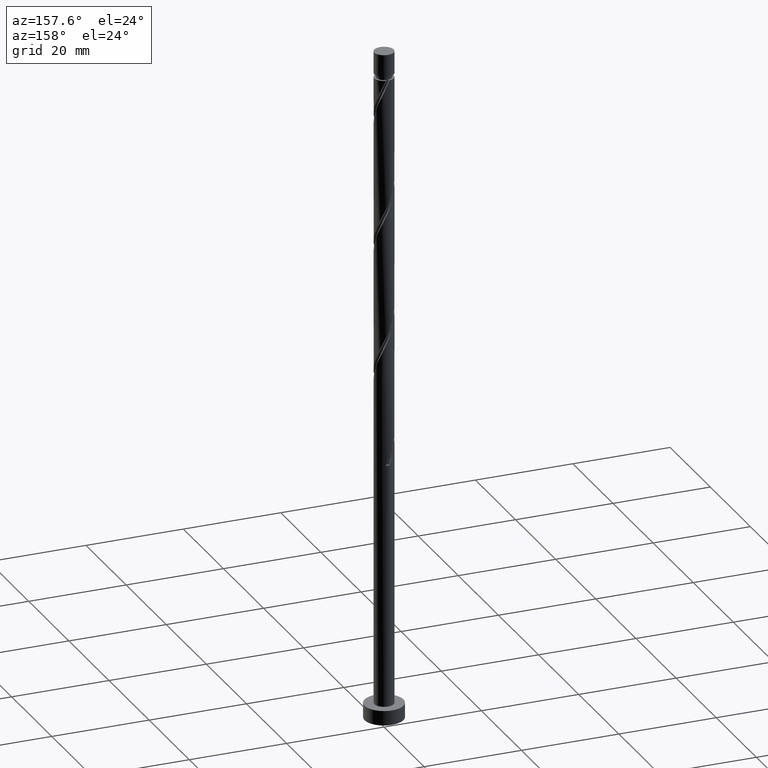
[diagram: clean part render]
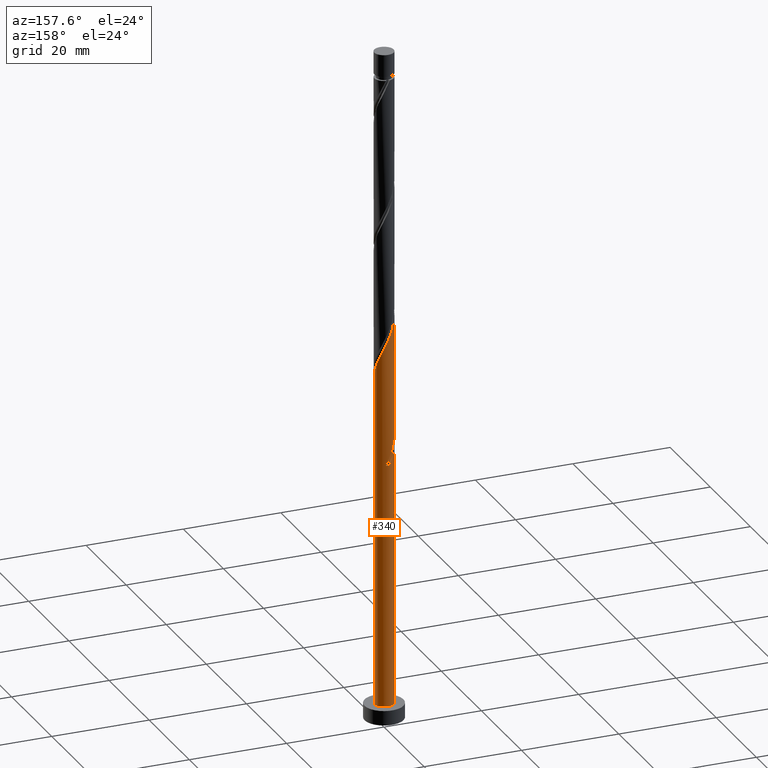
[diagram: same view with one face highlighted and labeled with its STEP entity id]
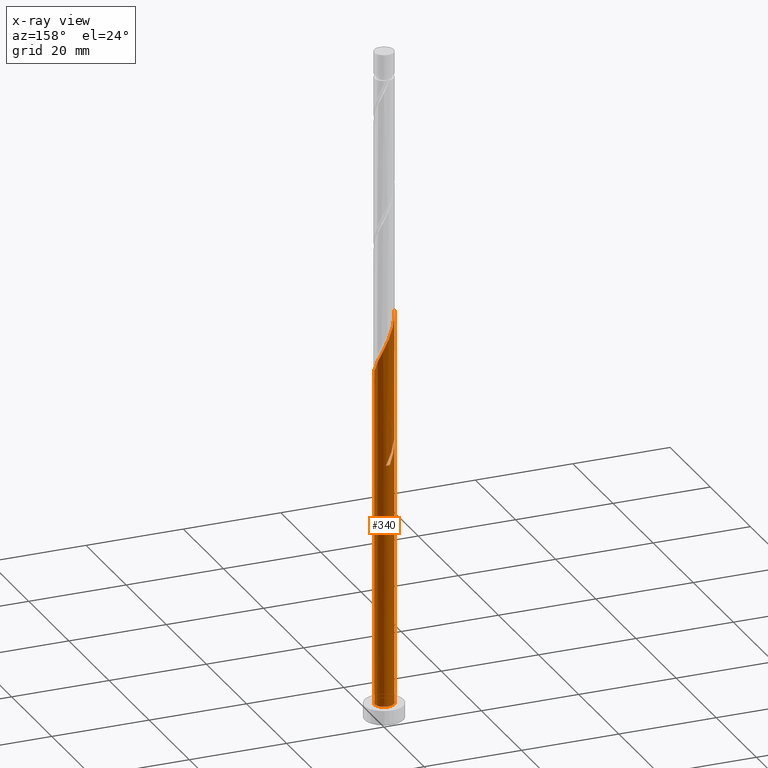
[diagram: x-ray of the same camera — body ghosted, the highlighted face saturated]
A machine part, auxiliary view. The second image highlights one B-rep face of the part: STEP entity #340.
The next image is the same camera in x-ray: the body ghosted, the highlighted face saturated — about 0% of this face is hidden behind the body in this view.
In plain terms, the highlighted cylindrical surface (edge-blend (fillet) strip) has radius 2 mm, axis along (-0, -0, -1).
Its self-contained STEP definition (entity closure, byte-faithful):
#6 = CARTESIAN_POINT ( 'NONE',  ( -2.000000000000000000, 0.000000000000000000, 3.000000000000000000 ) ) ;
#9 = CARTESIAN_POINT ( 'NONE',  ( -1.996690616564939846, 0.1150068768444767603, 60.38636955488897229 ) ) ;
#16 = VERTEX_POINT ( 'NONE', #129 ) ;
#19 = LINE ( 'NONE', #673, #1209 ) ;
#31 = CYLINDRICAL_SURFACE ( 'NONE', #655, 2.000000000000000000 ) ;
#51 = EDGE_CURVE ( 'NONE', #16, #812, #918, .T. ) ;
#61 = CARTESIAN_POINT ( 'NONE',  ( 1.996690616564942955, 0.1150068768444761219, 72.50758167610105431 ) ) ;
#67 = EDGE_CURVE ( 'NONE', #812, #1207, #19, .T. ) ;
#92 = CARTESIAN_POINT ( 'NONE',  ( -1.394470680848407529, 1.433684595806968387, 82.20455137307077109 ) ) ;
#115 = VERTEX_POINT ( 'NONE', #301 ) ;
#129 = CARTESIAN_POINT ( 'NONE',  ( -0.3979949748426477862, 1.960000000000003073, 53.11364228216168470 ) ) ;
#130 = CARTESIAN_POINT ( 'NONE',  ( -1.617545623245912001, 1.176242388590886589, 57.96212713064654309 ) ) ;
#140 = LINE ( 'NONE', #768, #972 ) ;
#148 = CARTESIAN_POINT ( 'NONE',  ( -2.000000000000003109, -9.647149353755143079E-16, 58.93085446952746764 ) ) ;
#156 = CARTESIAN_POINT ( 'NONE',  ( -1.394470680848407529, 1.433684595806968387, 55.53788470640410679 ) ) ;
#173 = EDGE_CURVE ( 'NONE', #1116, #654, #1354, .T. ) ;
#199 = CARTESIAN_POINT ( 'NONE',  ( 1.617545623245914665, 1.176242388590887478, 74.93182410034347640 ) ) ;
#223 = CARTESIAN_POINT ( 'NONE',  ( -0.1161895186124997786, 2.017223038501451349, 79.17424834276775414 ) ) ;
#229 = CARTESIAN_POINT ( 'NONE',  ( 0.000000000000000000, 0.000000000000000000, 3.000000000000000000 ) ) ;
#266 = CARTESIAN_POINT ( 'NONE',  ( -0.9340691933046022521, 1.768478086411957584, 54.32576349428288154 ) ) ;
#267 = CARTESIAN_POINT ( 'NONE',  ( -1.448427499289741682, 1.408810338760219993, 57.35606652458592691 ) ) ;
#288 = ORIENTED_EDGE ( 'NONE', *, *, #51, .F. ) ;
#290 = CARTESIAN_POINT ( 'NONE',  ( -1.948211798543802775, 0.4521844623765091664, 57.96212713064652178 ) ) ;
#291 = FACE_OUTER_BOUND ( 'NONE', #1353, .T. ) ;
#301 = CARTESIAN_POINT ( 'NONE',  ( -2.000000000000000444, -4.038341589944041928E-15, 60.62976342812925878 ) ) ;
#313 = CARTESIAN_POINT ( 'NONE',  ( 2.000000000000002665, 0.05755105304764852187, 72.38628580757901432 ) ) ;
#314 = DIRECTION ( 'NONE',  ( -0.000000000000000000, -0.000000000000000000, -1.000000000000000000 ) ) ;
#333 = CARTESIAN_POINT ( 'NONE',  ( 1.786663747202085650, 0.9436744384215539627, 74.32576349428290996 ) ) ;
#340 = ADVANCED_FACE ( 'NONE', ( #291 ), #31, .T. ) ;
#343 = CARTESIAN_POINT ( 'NONE',  ( -0.9340691933046022521, 1.768478086411957584, 80.99243016094952452 ) ) ;
#368 = CARTESIAN_POINT ( 'NONE',  ( -0.3979949748426477862, 1.960000000000003073, 79.78030894882836321 ) ) ;
#377 = ORIENTED_EDGE ( 'NONE', *, *, #173, .F. ) ;
#422 = EDGE_CURVE ( 'NONE', #115, #1178, #1085, .T. ) ;
#451 = ORIENTED_EDGE ( 'NONE', *, *, #1229, .T. ) ;
#458 = CIRCLE ( 'NONE', #888, 2.000000000000000000 ) ;
#492 = CARTESIAN_POINT ( 'NONE',  ( -2.000000000000003109, -9.647149353755143079E-16, 85.59752113619411773 ) ) ;
#514 = CARTESIAN_POINT ( 'NONE',  ( -0.4568343776401058709, 1.968245701812301851, 54.93182410034351193 ) ) ;
#583 = CARTESIAN_POINT ( 'NONE',  ( 1.980155124014554291, 0.4020876473299548337, 73.11364228216170602 ) ) ;
#598 = CARTESIAN_POINT ( 'NONE',  ( 0.7248413235775373886, 1.864029252891266530, 77.35606652458592691 ) ) ;
#619 = CARTESIAN_POINT ( 'NONE',  ( 1.883409435608319304, 0.6728810428757542317, 73.71970288822227246 ) ) ;
#644 = DIRECTION ( 'NONE',  ( 0.000000000000000000, 0.000000000000000000, 1.000000000000000000 ) ) ;
#654 = VERTEX_POINT ( 'NONE', #950 ) ;
#655 = AXIS2_PLACEMENT_3D ( 'NONE', #1060, #1298, #681 ) ;
#663 = ORIENTED_EDGE ( 'NONE', *, *, #809, .T. ) ;
#670 = EDGE_CURVE ( 'NONE', #1116, #1121, #1575, .T. ) ;
#673 = CARTESIAN_POINT ( 'NONE',  ( -2.000000000000000000, 0.000000000000000000, 138.4499999999999886 ) ) ;
#681 = DIRECTION ( 'NONE',  ( -1.000000000000000000, 0.000000000000000000, 0.000000000000000000 ) ) ;
#700 = ORIENTED_EDGE ( 'NONE', *, *, #884, .F. ) ;
#739 = CARTESIAN_POINT ( 'NONE',  ( 1.448427499289745235, 1.408810338760220882, 75.53788470640411390 ) ) ;
#767 = CARTESIAN_POINT ( 'NONE',  ( -1.883409435608316862, 0.6728810428757543427, 59.17424834276773993 ) ) ;
#768 = CARTESIAN_POINT ( 'NONE',  ( -2.000000000000000000, 0.000000000000000000, 138.4499999999999886 ) ) ;
#773 = CARTESIAN_POINT ( 'NONE',  ( -2.000000000000000444, -4.038341589944041928E-15, 60.62976342812925878 ) ) ;
#790 = CARTESIAN_POINT ( 'NONE',  ( -2.000000000000004441, 0.2290578547702404599, 58.44489451655616818 ) ) ;
#809 = EDGE_CURVE ( 'NONE', #1121, #1207, #1610, .T. ) ;
#812 = VERTEX_POINT ( 'NONE', #978 ) ;
#847 = CARTESIAN_POINT ( 'NONE',  ( -1.188337955536408641, 1.634179211325361480, 81.59849076701019044 ) ) ;
#884 = EDGE_CURVE ( 'NONE', #654, #115, #140, .T. ) ;
#888 = AXIS2_PLACEMENT_3D ( 'NONE', #1018, #1408, #1146 ) ;
#901 = CARTESIAN_POINT ( 'NONE',  ( -1.980155124014550738, 0.4020876473299550002, 59.78030894882836321 ) ) ;
#912 = CARTESIAN_POINT ( 'NONE',  ( -1.600603406160406861, 1.233189980288575072, 56.14394531246470876 ) ) ;
#914 = DIRECTION ( 'NONE',  ( -0.000000000000000000, -0.000000000000000000, -1.000000000000000000 ) ) ;
#918 =( BOUNDED_CURVE ( )  B_SPLINE_CURVE ( 2, ( #1434, #1040, #266, #1552, #156, #912, #1291, #1172, #290, #790, #148 ),
 .UNSPECIFIED., .F., .T. ) 
 B_SPLINE_CURVE_WITH_KNOTS ( ( 3, 2, 2, 2, 2, 3 ),
 ( 0.000000000000000000, 0.01136363636363635354, 0.02272727272727270709, 0.03409090909090906063, 0.04545454545454541417, 0.05452521624175155068 ),
 .UNSPECIFIED. ) 
 CURVE ( )  GEOMETRIC_REPRESENTATION_ITEM ( )  RATIONAL_B_SPLINE_CURVE ( ( 0.9090909090909243817, 0.8998376744372265090, 0.9090909090909243817, 0.8998376744372265090, 0.9090909090909243817, 0.8998376744372265090, 0.9090909090909243817, 0.8998376744372265090, 0.9090909090909243817, 0.9017048011080037728, 0.9061101570135648986 ) ) 
 REPRESENTATION_ITEM ( '' )  );
#925 = CARTESIAN_POINT ( 'NONE',  ( 0.3979949748426483969, 1.959999999999999298, 53.11364228216168470 ) ) ;
#936 = CARTESIAN_POINT ( 'NONE',  ( -1.786663747202082320, 0.9436744384215536297, 58.56818773670713085 ) ) ;
#950 = CARTESIAN_POINT ( 'NONE',  ( -2.000000000000003109, -9.647149353755143079E-16, 85.59752113619411773 ) ) ;
#968 = AXIS2_PLACEMENT_3D ( 'NONE', #229, #644, #1145 ) ;
#972 = VECTOR ( 'NONE', #914, 1000.000000000000000 ) ;
#978 = CARTESIAN_POINT ( 'NONE',  ( -2.000000000000003109, -9.647149353755143079E-16, 58.93085446952746764 ) ) ;
#992 = CARTESIAN_POINT ( 'NONE',  ( -1.600603406160406861, 1.233189980288575072, 82.81061197913140859 ) ) ;
#1004 = CARTESIAN_POINT ( 'NONE',  ( -0.6798004310727961963, 1.902776961498554575, 80.38636955488897229 ) ) ;
#1018 = CARTESIAN_POINT ( 'NONE',  ( 0.000000000000000000, 0.000000000000000000, 53.11364228216169892 ) ) ;
#1032 = CARTESIAN_POINT ( 'NONE',  ( -2.000000000000000000, 0.05755105304764287361, 60.50766542341104071 ) ) ;
#1040 = CARTESIAN_POINT ( 'NONE',  ( -0.6798004310727961963, 1.902776961498554575, 53.71970288822228667 ) ) ;
#1060 = CARTESIAN_POINT ( 'NONE',  ( 0.000000000000000000, 0.000000000000000000, 138.4499999999999886 ) ) ;
#1061 = CARTESIAN_POINT ( 'NONE',  ( 2.000000000000003109, 8.899308318580325832E-16, 72.26418780286080334 ) ) ;
#1085 =( BOUNDED_CURVE ( )  B_SPLINE_CURVE ( 2, ( #773, #1032, #9, #901, #767, #936, #130, #267, #1560, #1443, #1307, #514, #1534, #1545, #925 ),
 .UNSPECIFIED., .F., .T. ) 
 B_SPLINE_CURVE_WITH_KNOTS ( ( 3, 2, 2, 2, 2, 2, 2, 3 ),
 ( 0.9295252162417512176, 0.9318181818181817677, 0.9431818181818182323, 0.9545454545454545858, 0.9659090909090909394, 0.9772727272727272929, 0.9886363636363636465, 1.000000000000000000 ),
 .UNSPECIFIED. ) 
 CURVE ( )  GEOMETRIC_REPRESENTATION_ITEM ( )  RATIONAL_B_SPLINE_CURVE ( ( 0.9061101570135583483, 0.9072237824201405676, 0.9090909090909180534, 0.8998376744372204028, 0.9090909090909180534, 0.8998376744372204028, 0.9090909090909180534, 0.8998376744372204028, 0.9090909090909180534, 0.8998376744372204028, 0.9090909090909180534, 0.8998376744372204028, 0.9090909090909180534, 0.8998376744372204028, 0.9090909090909180534 ) ) 
 REPRESENTATION_ITEM ( '' )  );
#1116 = VERTEX_POINT ( 'NONE', #1061 ) ;
#1121 = VERTEX_POINT ( 'NONE', #1571 ) ;
#1123 = CARTESIAN_POINT ( 'NONE',  ( -1.883197487972274375, 0.7322950311120159927, 84.02273319125261253 ) ) ;
#1132 = CARTESIAN_POINT ( 'NONE',  ( 0.4568343776401070366, 1.968245701812304072, 77.96212713064653599 ) ) ;
#1145 = DIRECTION ( 'NONE',  ( 1.000000000000000000, 0.000000000000000000, 0.000000000000000000 ) ) ;
#1146 = DIRECTION ( 'NONE',  ( -1.000000000000000000, 0.000000000000000000, 0.000000000000000000 ) ) ;
#1159 = ORIENTED_EDGE ( 'NONE', *, *, #670, .T. ) ;
#1172 = CARTESIAN_POINT ( 'NONE',  ( -1.883197487972274375, 0.7322950311120159927, 57.35606652458591270 ) ) ;
#1178 = VERTEX_POINT ( 'NONE', #1661 ) ;
#1181 = DIRECTION ( 'NONE',  ( -0.000000000000000000, -0.000000000000000000, -1.000000000000000000 ) ) ;
#1207 = VERTEX_POINT ( 'NONE', #6 ) ;
#1209 = VECTOR ( 'NONE', #1181, 1000.000000000000000 ) ;
#1229 = EDGE_CURVE ( 'NONE', #16, #1178, #458, .T. ) ;
#1250 = CARTESIAN_POINT ( 'NONE',  ( -1.741900447066340174, 0.9827425057002956432, 83.41667258519197503 ) ) ;
#1291 = CARTESIAN_POINT ( 'NONE',  ( -1.741900447066340174, 0.9827425057002956432, 56.75000591852529652 ) ) ;
#1298 = DIRECTION ( 'NONE',  ( -0.000000000000000000, -0.000000000000000000, -1.000000000000000000 ) ) ;
#1307 = CARTESIAN_POINT ( 'NONE',  ( -0.7248413235775366115, 1.864029252891264754, 55.53788470640411390 ) ) ;
#1335 = VECTOR ( 'NONE', #314, 1000.000000000000000 ) ;
#1353 = EDGE_LOOP ( 'NONE', ( #377, #1159, #663, #1643, #288, #451, #1440, #700 ) ) ;
#1354 =( BOUNDED_CURVE ( )  B_SPLINE_CURVE ( 2, ( #1456, #313, #61, #583, #619, #333, #199, #739, #1381, #1359, #598, #1132, #1493, #223, #368, #1004, #343, #847, #92, #992, #1250, #1123, #1638, #1517, #492 ),
 .UNSPECIFIED., .F., .T. ) 
 B_SPLINE_CURVE_WITH_KNOTS ( ( 3, 2, 2, 2, 2, 2, 2, 2, 2, 2, 2, 2, 3 ),
 ( 0.1795252162417514674, 0.1818181818181817677, 0.1931818181818182323, 0.2045454545454545858, 0.2159090909090909394, 0.2272727272727272929, 0.2386363636363636465, 0.2500000000000000000, 0.2613636363636363535, 0.2727272727272727071, 0.2840909090909090606, 0.2954545454545454142, 0.3045252162417513286 ),
 .UNSPECIFIED. ) 
 CURVE ( )  GEOMETRIC_REPRESENTATION_ITEM ( )  RATIONAL_B_SPLINE_CURVE ( ( 0.9061101570135647876, 0.9072237824201470069, 0.9090909090909243817, 0.8998376744372265090, 0.9090909090909243817, 0.8998376744372265090, 0.9090909090909243817, 0.8998376744372265090, 0.9090909090909243817, 0.8998376744372265090, 0.9090909090909243817, 0.8998376744372265090, 0.9090909090909243817, 0.8998376744372265090, 0.9090909090909243817, 0.8998376744372265090, 0.9090909090909243817, 0.8998376744372265090, 0.9090909090909243817, 0.8998376744372265090, 0.9090909090909243817, 0.8998376744372265090, 0.9090909090909243817, 0.9017048011080039949, 0.9061101570135646766 ) ) 
 REPRESENTATION_ITEM ( '' )  );
#1359 = CARTESIAN_POINT ( 'NONE',  ( 0.9928482695149686288, 1.759812803970230322, 76.75000591852533205 ) ) ;
#1381 = CARTESIAN_POINT ( 'NONE',  ( 1.220637884402356432, 1.584311571365226046, 76.14394531246468034 ) ) ;
#1408 = DIRECTION ( 'NONE',  ( 0.000000000000000000, -0.000000000000000000, -1.000000000000000000 ) ) ;
#1434 = CARTESIAN_POINT ( 'NONE',  ( -0.3979949748426477862, 1.960000000000003073, 53.11364228216167760 ) ) ;
#1440 = ORIENTED_EDGE ( 'NONE', *, *, #422, .F. ) ;
#1443 = CARTESIAN_POINT ( 'NONE',  ( -0.9928482695149674075, 1.759812803970227879, 56.14394531246472297 ) ) ;
#1456 = CARTESIAN_POINT ( 'NONE',  ( 2.000000000000003109, 8.899308318580325832E-16, 72.26418780286080334 ) ) ;
#1457 = CARTESIAN_POINT ( 'NONE',  ( 2.000000000000000000, 2.449293598294706414E-16, 138.4499999999999886 ) ) ;
#1493 = CARTESIAN_POINT ( 'NONE',  ( 0.1703224295138035527, 1.992734370156876489, 78.56818773670711664 ) ) ;
#1517 = CARTESIAN_POINT ( 'NONE',  ( -2.000000000000003109, 0.2290578547702459555, 85.11156118322281827 ) ) ;
#1534 = CARTESIAN_POINT ( 'NONE',  ( -0.1703224295138028310, 1.992734370156874713, 54.32576349428290996 ) ) ;
#1545 = CARTESIAN_POINT ( 'NONE',  ( 0.1161895186125002227, 2.017223038501447796, 53.71970288822227957 ) ) ;
#1552 = CARTESIAN_POINT ( 'NONE',  ( -1.188337955536408641, 1.634179211325361480, 54.93182410034349061 ) ) ;
#1560 = CARTESIAN_POINT ( 'NONE',  ( -1.220637884402354656, 1.584311571365223825, 56.75000591852531784 ) ) ;
#1571 = CARTESIAN_POINT ( 'NONE',  ( 2.000000000000000000, 2.449293598294706414E-16, 3.000000000000000000 ) ) ;
#1575 = LINE ( 'NONE', #1457, #1335 ) ;
#1610 = CIRCLE ( 'NONE', #968, 2.000000000000000000 ) ;
#1638 = CARTESIAN_POINT ( 'NONE',  ( -1.948211798543802775, 0.4521844623765091664, 84.62879379731316476 ) ) ;
#1643 = ORIENTED_EDGE ( 'NONE', *, *, #67, .F. ) ;
#1661 = CARTESIAN_POINT ( 'NONE',  ( 0.3979949748426483969, 1.959999999999999520, 53.11364228216168470 ) ) ;